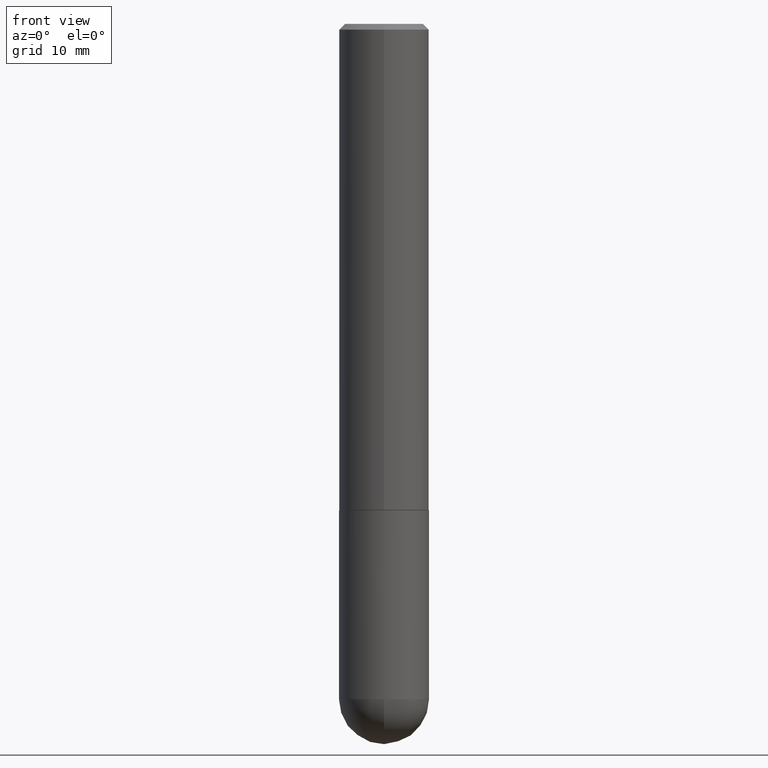
[diagram: clean part render]
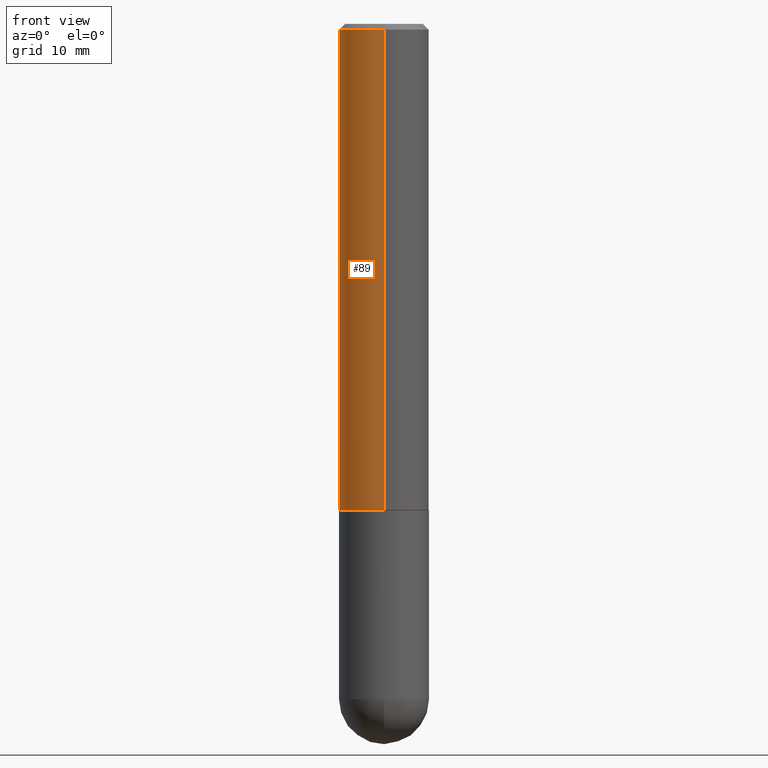
[diagram: same view with one face highlighted and labeled with its STEP entity id]
A machine part, front view. The second image highlights one B-rep face of the part: STEP entity #89.
In plain terms, the highlighted cylindrical surface (partial cylindrical patch) has radius 3.9688 mm, axis along (-0, 0, 1).
Its self-contained STEP definition (entity closure, byte-faithful):
#5 = VERTEX_POINT ( 'NONE', #139 ) ;
#21 = CIRCLE ( 'NONE', #118, 0.1562500000000000000 ) ;
#28 = VERTEX_POINT ( 'NONE', #148 ) ;
#56 = DIRECTION ( 'NONE',  ( -2.446082020685560042E-29, 3.490603180776537498E-15, 1.000000000000000000 ) ) ;
#68 = ORIENTED_EDGE ( 'NONE', *, *, #246, .F. ) ;
#78 = DIRECTION ( 'NONE',  ( -2.446082020685560042E-29, 3.490603180776537498E-15, 1.000000000000000000 ) ) ;
#86 = CARTESIAN_POINT ( 'NONE',  ( 1.091087918388479568E-15, 0.1562499999999999445, -0.02000000000000057981 ) ) ;
#89 = ADVANCED_FACE ( 'NONE', ( #196 ), #297, .T. ) ;
#90 = CIRCLE ( 'NONE', #321, 0.1562500000000002220 ) ;
#98 = VECTOR ( 'NONE', #149, 39.37007874015748143 ) ;
#100 = CARTESIAN_POINT ( 'NONE',  ( -1.091087918388439336E-15, -0.1562500000000060785, -1.686999999999999611 ) ) ;
#103 = CARTESIAN_POINT ( 'NONE',  ( 1.110223024625157132E-15, 0.1562500000000001110, -5.454067469963343169E-16 ) ) ;
#118 = AXIS2_PLACEMENT_3D ( 'NONE', #409, #373, #151 ) ;
#136 = EDGE_CURVE ( 'NONE', #28, #350, #90, .T. ) ;
#139 = CARTESIAN_POINT ( 'NONE',  ( -1.071952812151801215E-15, -0.1562500000000000833, -0.01999999999999948694 ) ) ;
#148 = CARTESIAN_POINT ( 'NONE',  ( 1.110223024625178431E-15, 0.1562499999999943379, -1.687000000000000499 ) ) ;
#149 = DIRECTION ( 'NONE',  ( -2.446082020685560042E-29, 3.490603180776537498E-15, 1.000000000000000000 ) ) ;
#151 = DIRECTION ( 'NONE',  ( -6.982962677686265133E-15, -1.000000000000000000, 3.496765431890256920E-15 ) ) ;
#158 = ORIENTED_EDGE ( 'NONE', *, *, #136, .T. ) ;
#161 = ORIENTED_EDGE ( 'NONE', *, *, #185, .F. ) ;
#162 = AXIS2_PLACEMENT_3D ( 'NONE', #330, #78, #397 ) ;
#182 = DIRECTION ( 'NONE',  ( -6.982962677686265922E-15, -1.000000000000000000, 3.496765431890251792E-15 ) ) ;
#185 = EDGE_CURVE ( 'NONE', #201, #5, #21, .T. ) ;
#189 = EDGE_CURVE ( 'NONE', #350, #5, #342, .T. ) ;
#196 = FACE_OUTER_BOUND ( 'NONE', #370, .T. ) ;
#198 = DIRECTION ( 'NONE',  ( -2.446082020685560042E-29, 3.490603180776537498E-15, 1.000000000000000000 ) ) ;
#201 = VERTEX_POINT ( 'NONE', #86 ) ;
#213 = CARTESIAN_POINT ( 'NONE',  ( 4.126540368896540526E-29, -5.888647565970019255E-15, -1.687000000000000055 ) ) ;
#246 = EDGE_CURVE ( 'NONE', #28, #201, #351, .T. ) ;
#254 = VECTOR ( 'NONE', #198, 39.37007874015748143 ) ;
#297 = CYLINDRICAL_SURFACE ( 'NONE', #162, 0.1562500000000001110 ) ;
#308 = CARTESIAN_POINT ( 'NONE',  ( -1.091087918388479765E-15, -0.1562500000000001110, 5.454067469963343169E-16 ) ) ;
#321 = AXIS2_PLACEMENT_3D ( 'NONE', #213, #56, #182 ) ;
#322 = ORIENTED_EDGE ( 'NONE', *, *, #189, .T. ) ;
#330 = CARTESIAN_POINT ( 'NONE',  ( 0.000000000000000000, 0.000000000000000000, 0.000000000000000000 ) ) ;
#342 = LINE ( 'NONE', #308, #98 ) ;
#350 = VERTEX_POINT ( 'NONE', #100 ) ;
#351 = LINE ( 'NONE', #103, #254 ) ;
#370 = EDGE_LOOP ( 'NONE', ( #68, #158, #322, #161 ) ) ;
#373 = DIRECTION ( 'NONE',  ( -2.446082020685560042E-29, 3.490603180776537498E-15, 1.000000000000000000 ) ) ;
#397 = DIRECTION ( 'NONE',  ( -6.982962677686265922E-15, -1.000000000000000000, 3.490603180776537104E-15 ) ) ;
#409 = CARTESIAN_POINT ( 'NONE',  ( 4.892164041371128702E-31, -6.981206361553086139E-17, -0.02000000000000003511 ) ) ;